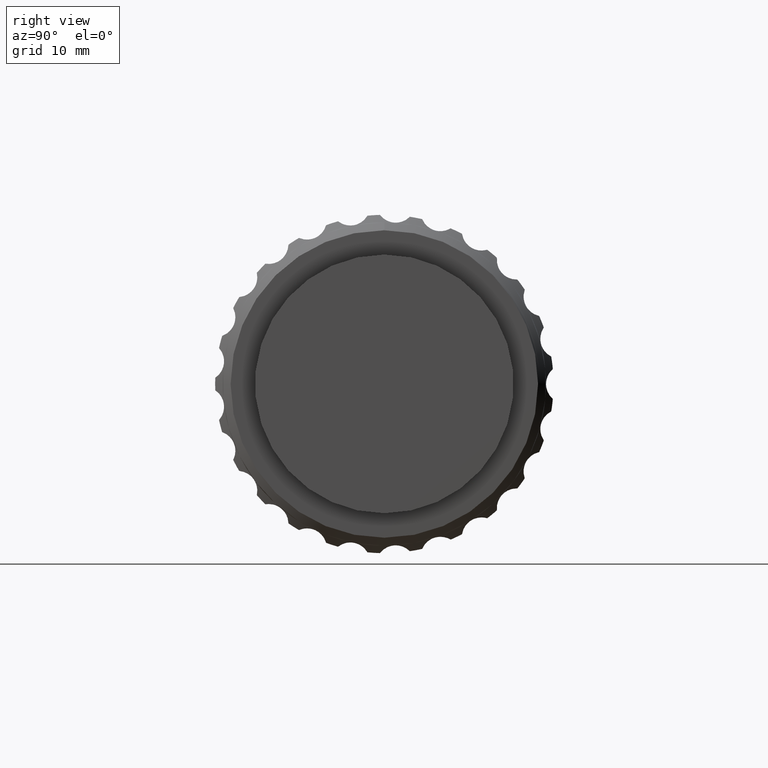
[diagram: clean part render]
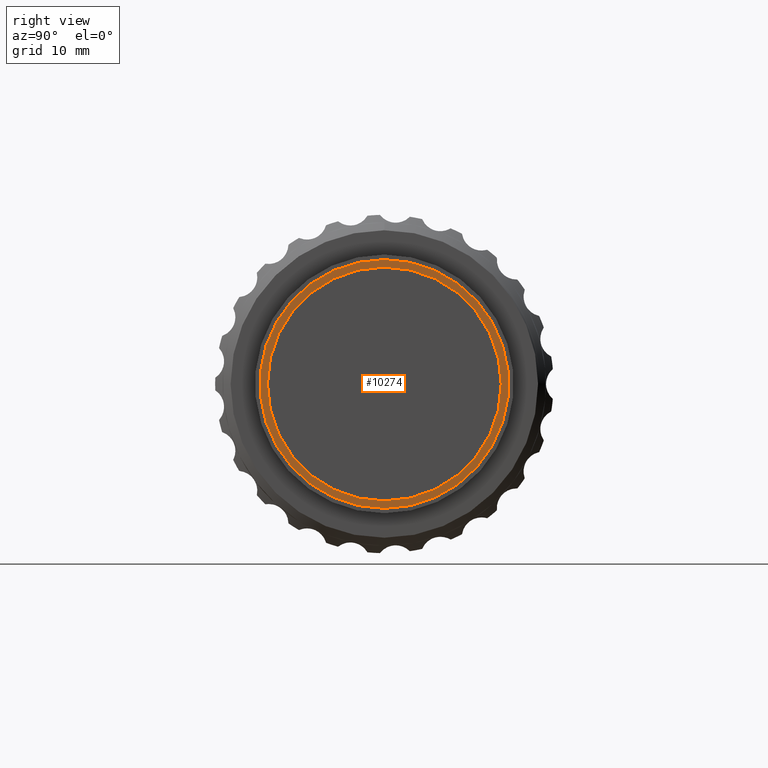
[diagram: same view with one face highlighted and labeled with its STEP entity id]
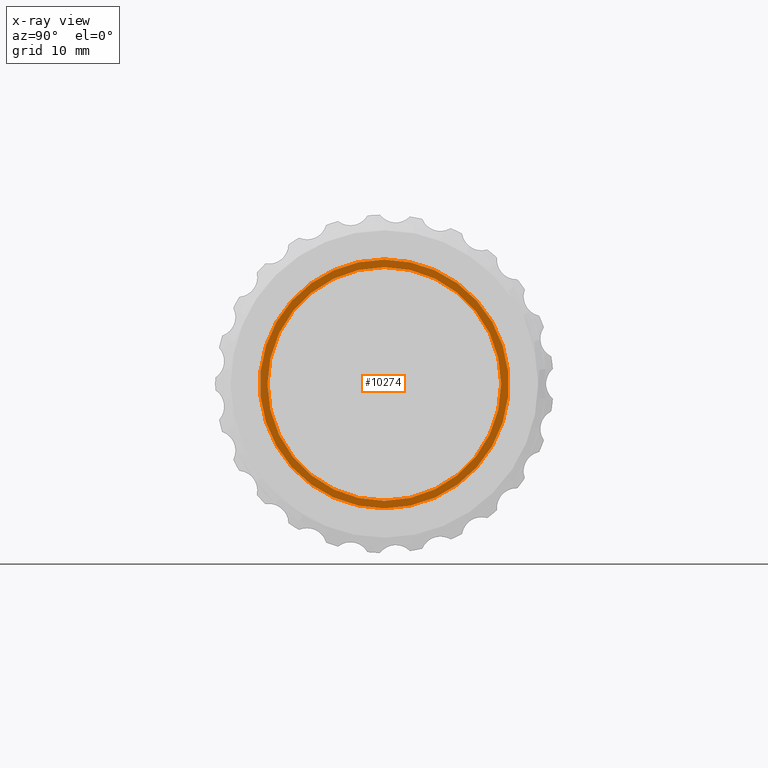
[diagram: x-ray of the same camera — body ghosted, the highlighted face saturated]
A machine part, right view. The second image highlights one B-rep face of the part: STEP entity #10274.
The next image is the same camera in x-ray: the body ghosted, the highlighted face saturated — about 0% of this face is hidden behind the body in this view.
In plain terms, the highlighted planar face has unit normal (-1, 0, -0).
Its self-contained STEP definition (entity closure, byte-faithful):
#2151 = CIRCLE ( 'NONE', #5101, 11.75000000000000000 ) ;
#3516 = EDGE_LOOP ( 'NONE', ( #30039, #24242 ) ) ;
#5061 = CARTESIAN_POINT ( 'NONE',  ( 55.15000000000000568, 1.530808498934191521E-15, -12.50000000000000000 ) ) ;
#5101 = AXIS2_PLACEMENT_3D ( 'NONE', #33985, #30556, #37873 ) ;
#5172 = CARTESIAN_POINT ( 'NONE',  ( 55.15000000000000568, 12.50000000000000000, 0.000000000000000000 ) ) ;
#5180 = EDGE_CURVE ( 'NONE', #27666, #44192, #22432, .T. ) ;
#5661 = DIRECTION ( 'NONE',  ( -1.000000000000000000, -0.000000000000000000, -0.000000000000000000 ) ) ;
#7002 = VERTEX_POINT ( 'NONE', #23537 ) ;
#7218 = AXIS2_PLACEMENT_3D ( 'NONE', #5172, #39436, #22070 ) ;
#7245 = CIRCLE ( 'NONE', #10869, 12.50000000000000000 ) ;
#7678 = EDGE_CURVE ( 'NONE', #7002, #32110, #9362, .T. ) ;
#8353 = ORIENTED_EDGE ( 'NONE', *, *, #15879, .T. ) ;
#9362 = CIRCLE ( 'NONE', #40718, 11.75000000000000000 ) ;
#10274 = ADVANCED_FACE ( 'NONE', ( #42847, #25716 ), #36461, .F. ) ;
#10869 = AXIS2_PLACEMENT_3D ( 'NONE', #31935, #42440, #31494 ) ;
#12330 = EDGE_CURVE ( 'NONE', #44192, #27666, #7245, .T. ) ;
#14874 = ORIENTED_EDGE ( 'NONE', *, *, #7678, .T. ) ;
#15879 = EDGE_CURVE ( 'NONE', #32110, #7002, #2151, .T. ) ;
#16029 = DIRECTION ( 'NONE',  ( -1.000000000000000000, -0.000000000000000000, -0.000000000000000000 ) ) ;
#22070 = DIRECTION ( 'NONE',  ( -0.000000000000000000, 0.000000000000000000, 1.000000000000000000 ) ) ;
#22432 = CIRCLE ( 'NONE', #28266, 12.50000000000000000 ) ;
#23537 = CARTESIAN_POINT ( 'NONE',  ( 55.15000000000000568, 1.438959988998140160E-15, -11.75000000000000000 ) ) ;
#24242 = ORIENTED_EDGE ( 'NONE', *, *, #5180, .F. ) ;
#25716 = FACE_BOUND ( 'NONE', #42585, .T. ) ;
#27666 = VERTEX_POINT ( 'NONE', #5061 ) ;
#28266 = AXIS2_PLACEMENT_3D ( 'NONE', #39708, #5661, #30084 ) ;
#30039 = ORIENTED_EDGE ( 'NONE', *, *, #12330, .F. ) ;
#30084 = DIRECTION ( 'NONE',  ( 0.000000000000000000, 0.000000000000000000, 1.000000000000000000 ) ) ;
#30556 = DIRECTION ( 'NONE',  ( -1.000000000000000000, -0.000000000000000000, -0.000000000000000000 ) ) ;
#31494 = DIRECTION ( 'NONE',  ( 0.000000000000000000, 0.000000000000000000, 1.000000000000000000 ) ) ;
#31935 = CARTESIAN_POINT ( 'NONE',  ( 55.15000000000000568, 0.000000000000000000, 0.000000000000000000 ) ) ;
#32110 = VERTEX_POINT ( 'NONE', #34933 ) ;
#33985 = CARTESIAN_POINT ( 'NONE',  ( 55.15000000000000568, 0.000000000000000000, 0.000000000000000000 ) ) ;
#34279 = CARTESIAN_POINT ( 'NONE',  ( 55.15000000000000568, 0.000000000000000000, 0.000000000000000000 ) ) ;
#34933 = CARTESIAN_POINT ( 'NONE',  ( 55.15000000000000568, 0.000000000000000000, 11.75000000000000000 ) ) ;
#36461 = PLANE ( 'NONE',  #7218 ) ;
#37873 = DIRECTION ( 'NONE',  ( 0.000000000000000000, 0.000000000000000000, 1.000000000000000000 ) ) ;
#39436 = DIRECTION ( 'NONE',  ( -1.000000000000000000, 0.000000000000000000, -0.000000000000000000 ) ) ;
#39708 = CARTESIAN_POINT ( 'NONE',  ( 55.15000000000000568, 0.000000000000000000, 0.000000000000000000 ) ) ;
#40026 = CARTESIAN_POINT ( 'NONE',  ( 55.15000000000000568, 0.000000000000000000, 12.50000000000000000 ) ) ;
#40718 = AXIS2_PLACEMENT_3D ( 'NONE', #34279, #16029, #43869 ) ;
#42440 = DIRECTION ( 'NONE',  ( -1.000000000000000000, -0.000000000000000000, -0.000000000000000000 ) ) ;
#42585 = EDGE_LOOP ( 'NONE', ( #8353, #14874 ) ) ;
#42847 = FACE_OUTER_BOUND ( 'NONE', #3516, .T. ) ;
#43869 = DIRECTION ( 'NONE',  ( 0.000000000000000000, 0.000000000000000000, 1.000000000000000000 ) ) ;
#44192 = VERTEX_POINT ( 'NONE', #40026 ) ;